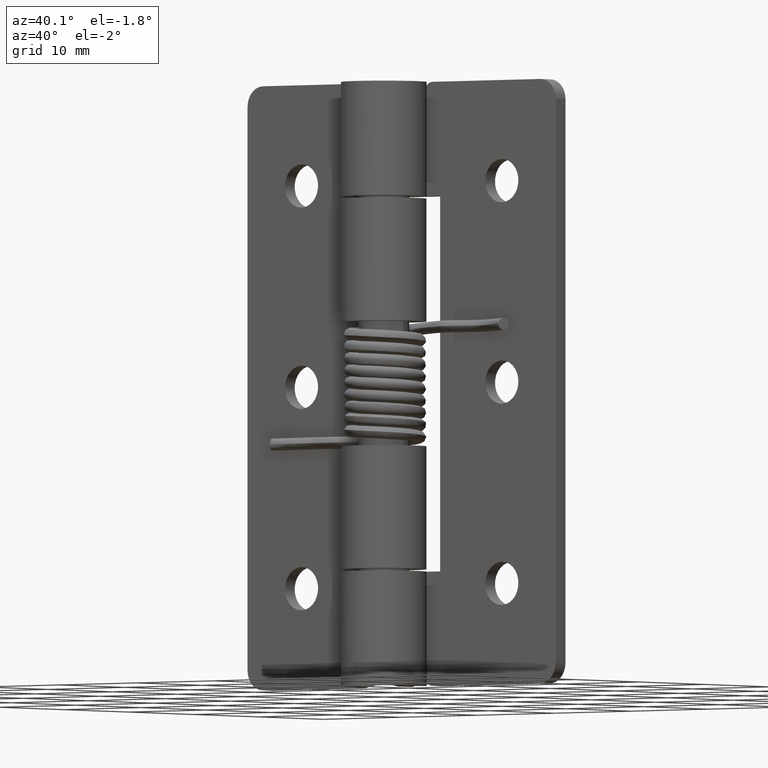
[diagram: clean part render]
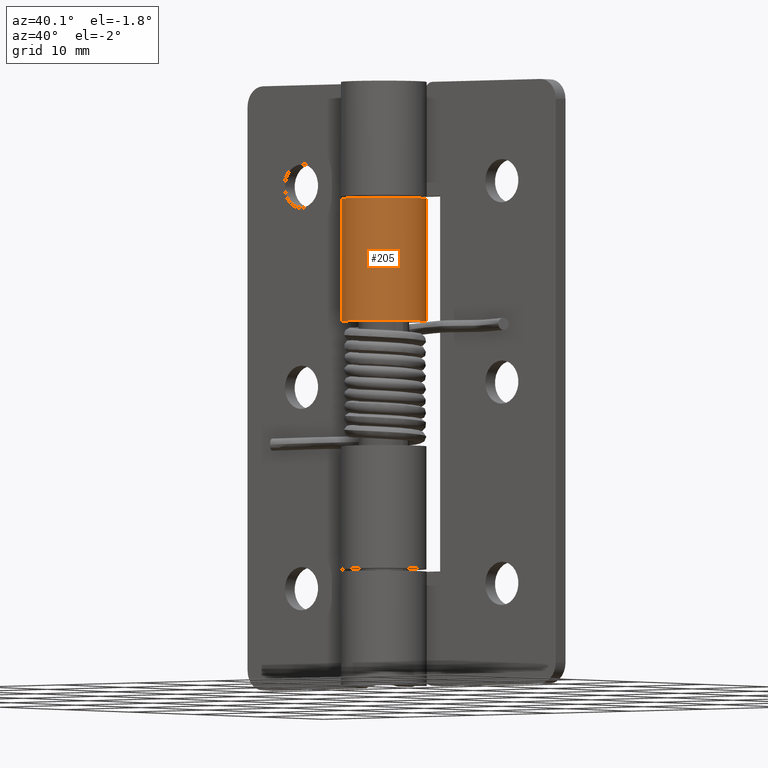
[diagram: same view with one face highlighted and labeled with its STEP entity id]
A machine part, auxiliary view. The second image highlights one B-rep face of the part: STEP entity #205.
In plain terms, the highlighted cylindrical surface (partial cylindrical patch) has radius 4.25 mm, axis along (0, 0, 1).
Its self-contained STEP definition (entity closure, byte-faithful):
#205=ADVANCED_FACE('',(#471),#470,.T.);
#470=CYLINDRICAL_SURFACE('',#1270,4.24999999992E+00);
#471=FACE_OUTER_BOUND('',#1271,.T.);
#1267=CARTESIAN_POINT('',(0.00000000000E+00,0.00000000000E+00,1.00000000000E+03));
#1268=DIRECTION('',(0.00000000000E+00,-0.00000000000E+00,1.00000000000E+00));
#1269=DIRECTION('',(-4.30511096808E-01,9.02585284350E-01,0.00000000000E+00));
#1270=AXIS2_PLACEMENT_3D('',#1267,#1268,#1269);
#1271=EDGE_LOOP('',(#5862,#5863,#5864,#5865));
#5862=ORIENTED_EDGE('',*,*,#6284,.T.);
#5863=ORIENTED_EDGE('',*,*,#6285,.T.);
#5864=ORIENTED_EDGE('',*,*,#6235,.F.);
#5865=ORIENTED_EDGE('',*,*,#6223,.F.);
#6223=EDGE_CURVE('',#6511,#6482,#6518,.T.);
#6235=EDGE_CURVE('',#6482,#6600,#6601,.T.);
#6284=EDGE_CURVE('',#6511,#6923,#6930,.T.);
#6285=EDGE_CURVE('',#6923,#6600,#6936,.T.);
#6482=VERTEX_POINT('',#7996);
#6511=VERTEX_POINT('',#8014);
#6518=CIRCLE('',#8021,4.24999999992E+00);
#6600=VERTEX_POINT('',#8069);
#6601=LINE('',#8070,#8071);
#6923=VERTEX_POINT('',#8268);
#6930=LINE('',#8272,#8273);
#6936=CIRCLE('',#8278,4.24999999992E+00);
#7996=CARTESIAN_POINT('',(0.00000000000E+00,4.24999999992E+00,4.84000000000E+01));
#8014=CARTESIAN_POINT('',(-3.30417911890E+00,2.67299464077E+00,4.84000000000E+01));
#8018=CARTESIAN_POINT('',(0.00000000000E+00,0.00000000000E+00,4.84000000000E+01));
#8019=DIRECTION('',(0.00000000000E+00,-0.00000000000E+00,1.00000000000E+00));
#8020=DIRECTION('',(-1.83690953073E-16,1.00000000000E+00,0.00000000000E+00));
#8021=AXIS2_PLACEMENT_3D('',#8018,#8019,#8020);
#8069=CARTESIAN_POINT('',(0.00000000000E+00,4.24999999992E+00,3.62000000000E+01));
#8070=CARTESIAN_POINT('',(0.00000000000E+00,4.25000000000E+00,4.84000000000E+01));
#8071=VECTOR('',#8072,1.22000000000E+01);
#8072=DIRECTION('',(0.00000000000E+00,0.00000000000E+00,-1.00000000000E+00));
#8268=CARTESIAN_POINT('',(-3.30417911890E+00,2.67299464077E+00,3.62000000000E+01));
#8272=CARTESIAN_POINT('',(-3.30417911890E+00,2.67299464077E+00,4.84000000000E+01));
#8273=VECTOR('',#8274,1.22000000000E+01);
#8274=DIRECTION('',(0.00000000000E+00,0.00000000000E+00,-1.00000000000E+00));
#8275=CARTESIAN_POINT('',(0.00000000000E+00,0.00000000000E+00,3.62000000000E+01));
#8276=DIRECTION('',(0.00000000000E+00,-0.00000000000E+00,1.00000000000E+00));
#8277=DIRECTION('',(-1.83690953073E-16,1.00000000000E+00,0.00000000000E+00));
#8278=AXIS2_PLACEMENT_3D('',#8275,#8276,#8277);